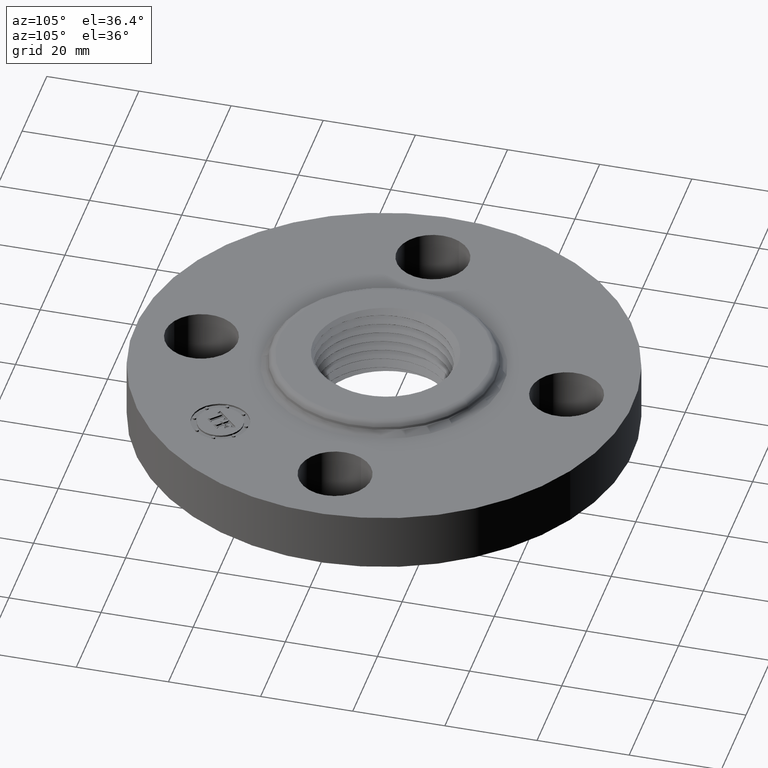
[diagram: clean part render]
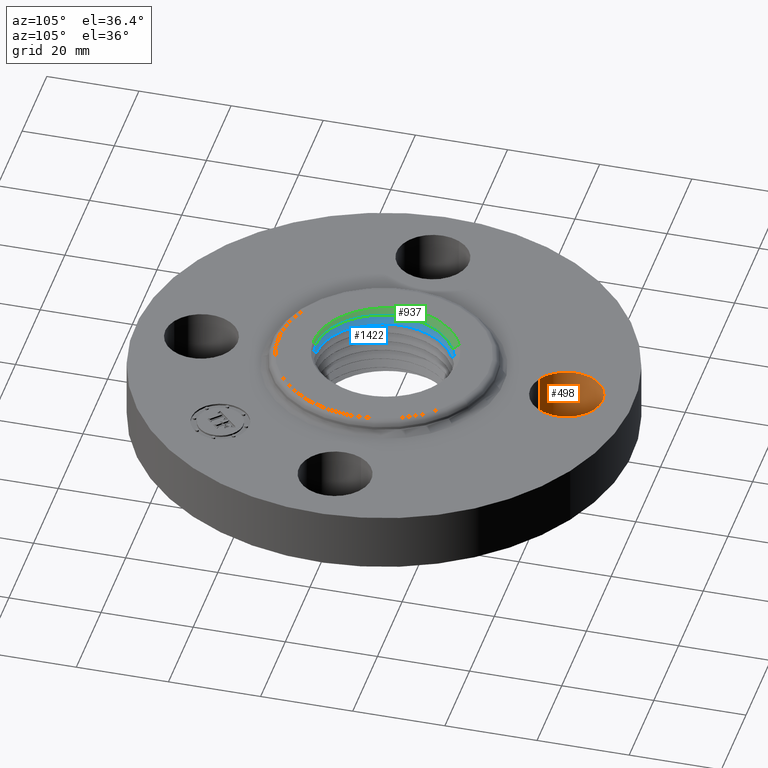
[diagram: same view with three faces highlighted in distinct colors, each labeled with its STEP entity id]
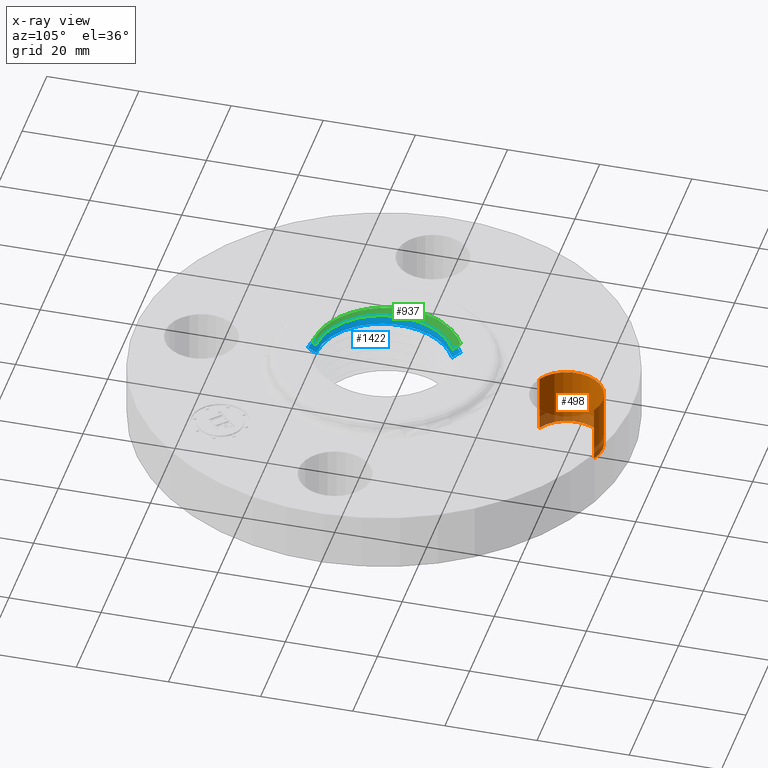
[diagram: x-ray of the same camera — body ghosted, the three highlighted faces saturated]
A machine part, auxiliary view with three faces highlighted in distinct colors.
The next image is the same camera in x-ray (body ghosted, the three faces saturated) — at least one of them is partly hidden behind the body in this view.
Their STEP definitions:

[orange] entity #498 — the highlighted cylindrical surface (partial cylindrical patch) has radius 7.874 mm, axis along (0, 0, -1).
#223=AXIS2_PLACEMENT_3D('Circle Axis2P3D',#221,#222,$) ;
#459=AXIS2_PLACEMENT_3D('Cylinder Axis2P3D',#456,#457,#458) ;
#489=AXIS2_PLACEMENT_3D('Circle Axis2P3D',#487,#488,$) ;
#221=CARTESIAN_POINT('Axis2P3D Location',(-4.54579506146E-016,1.56000000001,0.)) ;
#225=CARTESIAN_POINT('Vertex',(-0.148621916968,1.28794940582,0.)) ;
#227=CARTESIAN_POINT('Vertex',(0.148621916968,1.83205059419,0.)) ;
#456=CARTESIAN_POINT('Axis2P3D Location',(-2.86567351002E-016,1.56000000001,0.496062992128)) ;
#461=CARTESIAN_POINT('Line Origine',(0.148621916968,1.83205059419,0.250000000001)) ;
#465=CARTESIAN_POINT('Vertex',(0.148621916968,1.83205059419,0.500000000002)) ;
#468=CARTESIAN_POINT('Line Origine',(-0.148621916968,1.28794940582,0.250000000001)) ;
#472=CARTESIAN_POINT('Vertex',(-0.148621916968,1.28794940582,0.500000000002)) ;
#487=CARTESIAN_POINT('Axis2P3D Location',(-2.86567351002E-016,1.56000000001,0.500000000002)) ;
#222=DIRECTION('Axis2P3D Direction',(0.,0.,-0.0393700787402)) ;
#457=DIRECTION('Axis2P3D Direction',(0.,0.,-0.0393700787402)) ;
#458=DIRECTION('Axis2P3D XDirection',(-0.0188750212049,-0.0345504945626,-0.)) ;
#462=DIRECTION('Vector Direction',(0.,0.,-0.0393700787402)) ;
#469=DIRECTION('Vector Direction',(0.,0.,-0.0393700787402)) ;
#488=DIRECTION('Axis2P3D Direction',(0.,0.,-0.0393700787402)) ;
#463=VECTOR('Line Direction',#462,0.0393700787402) ;
#470=VECTOR('Line Direction',#469,0.0393700787402) ;
#493=ORIENTED_EDGE('',*,*,#474,.F.) ;
#494=ORIENTED_EDGE('',*,*,#229,.T.) ;
#495=ORIENTED_EDGE('',*,*,#467,.T.) ;
#496=ORIENTED_EDGE('',*,*,#491,.F.) ;
#498=ADVANCED_FACE('PartBody',(#497),#460,.F.) ;
#224=CIRCLE('generated circle',#223,0.310000000001) ;
#490=CIRCLE('generated circle',#489,0.310000000001) ;
#460=CYLINDRICAL_SURFACE('generated cylinder',#459,0.310000000001) ;
#229=EDGE_CURVE('',#226,#228,#224,.T.) ;
#467=EDGE_CURVE('',#228,#466,#464,.F.) ;
#474=EDGE_CURVE('',#226,#473,#471,.F.) ;
#491=EDGE_CURVE('',#473,#466,#490,.T.) ;
#492=EDGE_LOOP('',(#493,#494,#495,#496)) ;
#497=FACE_OUTER_BOUND('',#492,.T.) ;
#464=LINE('Line',#461,#463) ;
#471=LINE('Line',#468,#470) ;
#226=VERTEX_POINT('',#225) ;
#228=VERTEX_POINT('',#227) ;
#466=VERTEX_POINT('',#465) ;
#473=VERTEX_POINT('',#472) ;

[blue] entity #1422 — the highlighted face is a freeform B-spline surface patch.
#1022=CARTESIAN_POINT('Control Point',(5.42400886829E-006,-0.580404918174,0.517879665103)) ;
#1023=CARTESIAN_POINT('Control Point',(-1.00915924926E-006,-0.650004918968,0.55841301568)) ;
#1024=CARTESIAN_POINT('Vertex',(-1.00915924925E-006,-0.650004918968,0.55841301568)) ;
#1026=CARTESIAN_POINT('Vertex',(5.42400886833E-006,-0.580404918174,0.517879665103)) ;
#1226=CARTESIAN_POINT('Vertex',(-0.277719276771,0.508346686361,0.48130290538)) ;
#1230=CARTESIAN_POINT('Control Point',(5.4240088676E-006,-0.580404918174,0.517879665103)) ;
#1231=CARTESIAN_POINT('Control Point',(-0.0304725391835,-0.580382481226,0.517152564115)) ;
#1232=CARTESIAN_POINT('Control Point',(-0.0609482515686,-0.578359487307,0.516425446119)) ;
#1233=CARTESIAN_POINT('Control Point',(-0.0914662736757,-0.574327174004,0.515693045647)) ;
#1234=CARTESIAN_POINT('Control Point',(-0.151988174687,-0.562149435437,0.514223061727)) ;
#1235=CARTESIAN_POINT('Control Point',(-0.210356858931,-0.542088762067,0.512753370029)) ;
#1236=CARTESIAN_POINT('Control Point',(-0.23871725987,-0.530157411686,0.512021261778)) ;
#1237=CARTESIAN_POINT('Control Point',(-0.320932442633,-0.489088662272,0.50983303852)) ;
#1238=CARTESIAN_POINT('Control Point',(-0.393991759628,-0.432387279758,0.507644855539)) ;
#1239=CARTESIAN_POINT('Control Point',(-0.437482141275,-0.388259875827,0.506182723222)) ;
#1240=CARTESIAN_POINT('Control Point',(-0.511820310327,-0.289533809342,0.503257635908)) ;
#1241=CARTESIAN_POINT('Control Point',(-0.557995522914,-0.174861572779,0.500331906096)) ;
#1242=CARTESIAN_POINT('Control Point',(-0.573335585797,-0.114752133791,0.498867866456)) ;
#1243=CARTESIAN_POINT('Control Point',(-0.587759291114,0.00804259882664,0.495939749582)) ;
#1244=CARTESIAN_POINT('Control Point',(-0.569807163817,0.130310886627,0.49301331796)) ;
#1245=CARTESIAN_POINT('Control Point',(-0.552764874801,0.189885407999,0.491550843863)) ;
#1246=CARTESIAN_POINT('Control Point',(-0.51575322489,0.274712256644,0.489358630248)) ;
#1247=CARTESIAN_POINT('Control Point',(-0.463188433178,0.350163167667,0.487165784325)) ;
#1248=CARTESIAN_POINT('Control Point',(-0.443997552274,0.37418844985,0.486433119296)) ;
#1249=CARTESIAN_POINT('Control Point',(-0.402423272853,0.419640286767,0.484964386985)) ;
#1250=CARTESIAN_POINT('Control Point',(-0.35520503416,0.45921059265,0.4834953712)) ;
#1251=CARTESIAN_POINT('Control Point',(-0.330362803462,0.47734665217,0.482762422697)) ;
#1252=CARTESIAN_POINT('Control Point',(-0.304522178853,0.493729747457,0.482032672867)) ;
#1253=CARTESIAN_POINT('Control Point',(-0.277719276771,0.508346686361,0.48130290538)) ;
#1364=CARTESIAN_POINT('Vertex',(-0.311080079663,0.569430374936,0.521836255663)) ;
#1383=CARTESIAN_POINT('Control Point',(5.54645569605E-006,-0.579080174407,0.517108166498)) ;
#1384=CARTESIAN_POINT('Control Point',(-1.00915925067E-006,-0.650004918968,0.55841301568)) ;
#1385=CARTESIAN_POINT('Control Point',(-0.15292492011,-0.578967366439,0.513451417037)) ;
#1386=CARTESIAN_POINT('Control Point',(-0.171662340541,-0.649890379712,0.554756266183)) ;
#1387=CARTESIAN_POINT('Control Point',(-0.305815841934,-0.528369867479,0.509793811811)) ;
#1388=CARTESIAN_POINT('Control Point',(-0.343287893734,-0.593107739251,0.551098667222)) ;
#1389=CARTESIAN_POINT('Control Point',(-0.435845212812,-0.427326565956,0.506147704857)) ;
#1390=CARTESIAN_POINT('Control Point',(-0.489260493144,-0.479694683416,0.547452554306)) ;
#1391=CARTESIAN_POINT('Control Point',(-0.609395000238,-0.155967670912,0.49882911714)) ;
#1392=CARTESIAN_POINT('Control Point',(-0.684106409647,-0.175089498738,0.540133965826)) ;
#1393=CARTESIAN_POINT('Control Point',(-0.587105317123,0.165362330054,0.491507125974)) ;
#1394=CARTESIAN_POINT('Control Point',(-0.659111052572,0.185646457663,0.532811975297)) ;
#1395=CARTESIAN_POINT('Control Point',(-0.521367666287,0.316360759427,0.487857648391)) ;
#1396=CARTESIAN_POINT('Control Point',(-0.58532376324,0.355172570096,0.52916250015)) ;
#1397=CARTESIAN_POINT('Control Point',(-0.411331521622,0.433972681071,0.484194955999)) ;
#1398=CARTESIAN_POINT('Control Point',(-0.461796813088,0.48722420827,0.525499804913)) ;
#1399=CARTESIAN_POINT('Control Point',(-0.277084298114,0.507184039328,0.480531406793)) ;
#1400=CARTESIAN_POINT('Control Point',(-0.311080079663,0.569430374936,0.521836255663)) ;
#1402=CARTESIAN_POINT('Control Point',(-0.277719276771,0.508346686361,0.48130290538)) ;
#1403=CARTESIAN_POINT('Control Point',(-0.311080079663,0.569430374936,0.521836255663)) ;
#1406=CARTESIAN_POINT('Control Point',(-1.00915925067E-006,-0.650004918968,0.55841301568)) ;
#1407=CARTESIAN_POINT('Control Point',(-0.171662340541,-0.649890379712,0.554756266183)) ;
#1408=CARTESIAN_POINT('Control Point',(-0.343287893734,-0.593107739251,0.551098667222)) ;
#1409=CARTESIAN_POINT('Control Point',(-0.489260493144,-0.479694683416,0.547452554306)) ;
#1410=CARTESIAN_POINT('Control Point',(-0.684106409647,-0.175089498738,0.540133965826)) ;
#1411=CARTESIAN_POINT('Control Point',(-0.659111052572,0.185646457663,0.532811975297)) ;
#1412=CARTESIAN_POINT('Control Point',(-0.58532376324,0.355172570096,0.52916250015)) ;
#1413=CARTESIAN_POINT('Control Point',(-0.461796813088,0.48722420827,0.525499804913)) ;
#1414=CARTESIAN_POINT('Control Point',(-0.311080079663,0.569430374936,0.521836255663)) ;
#1417=ORIENTED_EDGE('',*,*,#1404,.F.) ;
#1418=ORIENTED_EDGE('',*,*,#1415,.F.) ;
#1419=ORIENTED_EDGE('',*,*,#1028,.T.) ;
#1420=ORIENTED_EDGE('',*,*,#1254,.T.) ;
#1422=ADVANCED_FACE('PartBody',(#1421),#1382,.T.) ;
#1021=B_SPLINE_CURVE_WITH_KNOTS('',1,(#1022,#1023),.UNSPECIFIED.,.F.,.U.,(2,2),(-1.0034218189,1.04236057529),.UNSPECIFIED.) ;
#1229=B_SPLINE_CURVE_WITH_KNOTS('',5,(#1230,#1231,#1232,#1233,#1234,#1235,#1236,#1237,#1238,#1239,#1240,#1241,#1242,#1243,#1244,#1245,#1246,#1247,#1248,#1249,#1250,#1251,#1252,#1253),.UNSPECIFIED.,.F.,.U.,(6,3,3,3,3,3,3,6),(0.,5.76528518737,11.5305703747,23.1248090347,34.7261059309,46.3262663804,52.107252433,57.8882384855),.UNSPECIFIED.) ;
#1401=B_SPLINE_CURVE_WITH_KNOTS('',1,(#1402,#1403),.UNSPECIFIED.,.F.,.U.,(2,2),(-1.00342181949,1.04236057529),.UNSPECIFIED.) ;
#1405=B_SPLINE_CURVE_WITH_KNOTS('',5,(#1406,#1407,#1408,#1409,#1410,#1411,#1412,#1413,#1414),.UNSPECIFIED.,.F.,.U.,(6,3,6),(0.,20.6725756436,41.3452553399),.UNSPECIFIED.) ;
#1382=B_SPLINE_SURFACE_WITH_KNOTS('',5,1,((#1383,#1384),(#1385,#1386),(#1387,#1388),(#1389,#1390),(#1391,#1392),(#1393,#1394),(#1395,#1396),(#1397,#1398),(#1399,#1400)),.UNSPECIFIED.,.F.,.F.,.U.,(6,3,6),(2,2),(0.,20.6725756436,41.3452553399),(-1.04236057529,1.04236057529),.UNSPECIFIED.) ;
#1028=EDGE_CURVE('',#1025,#1027,#1021,.F.) ;
#1254=EDGE_CURVE('',#1027,#1227,#1229,.T.) ;
#1404=EDGE_CURVE('',#1365,#1227,#1401,.F.) ;
#1415=EDGE_CURVE('',#1025,#1365,#1405,.T.) ;
#1416=EDGE_LOOP('',(#1417,#1418,#1419,#1420)) ;
#1421=FACE_OUTER_BOUND('',#1416,.T.) ;
#1025=VERTEX_POINT('',#1024) ;
#1027=VERTEX_POINT('',#1026) ;
#1227=VERTEX_POINT('',#1226) ;
#1365=VERTEX_POINT('',#1364) ;

[green] entity #937 — the highlighted face is a freeform B-spline surface patch.
#292=CARTESIAN_POINT('Vertex',(3.78292468322E-007,-0.609086848221,0.620000000002)) ;
#296=CARTESIAN_POINT('Control Point',(-0.629250746431,0.170458407323,0.620000000002)) ;
#297=CARTESIAN_POINT('Control Point',(-0.643500581482,0.109256120128,0.620000000002)) ;
#298=CARTESIAN_POINT('Control Point',(-0.650343126818,0.0464583063125,0.620000000002)) ;
#299=CARTESIAN_POINT('Control Point',(-0.649517964492,-0.0167532091973,0.620000000002)) ;
#300=CARTESIAN_POINT('Control Point',(-0.63399780429,-0.13106076514,0.620000000002)) ;
#301=CARTESIAN_POINT('Control Point',(-0.593925763293,-0.238485586327,0.620000000002)) ;
#302=CARTESIAN_POINT('Control Point',(-0.570836134961,-0.285190863407,0.620000000002)) ;
#303=CARTESIAN_POINT('Control Point',(-0.510048152464,-0.381869333101,0.620000000002)) ;
#304=CARTESIAN_POINT('Control Point',(-0.429483966075,-0.462472875095,0.620000000002)) ;
#305=CARTESIAN_POINT('Control Point',(-0.380424995311,-0.500705879021,0.620000000002)) ;
#306=CARTESIAN_POINT('Control Point',(-0.278787503051,-0.561379838387,0.620000000002)) ;
#307=CARTESIAN_POINT('Control Point',(-0.166418708085,-0.59647318263,0.620000000002)) ;
#308=CARTESIAN_POINT('Control Point',(-0.111225870758,-0.607025675954,0.620000000002)) ;
#309=CARTESIAN_POINT('Control Point',(-0.0554293036511,-0.611211214942,0.620000000002)) ;
#310=CARTESIAN_POINT('Control Point',(3.78292467902E-007,-0.609086848221,0.620000000002)) ;
#311=CARTESIAN_POINT('Vertex',(-0.629250746431,0.170458407323,0.620000000002)) ;
#742=CARTESIAN_POINT('Vertex',(-0.31238351382,0.571816286357,0.608836255763)) ;
#746=CARTESIAN_POINT('Control Point',(-0.27901898769,0.510734631817,0.568302904897)) ;
#747=CARTESIAN_POINT('Control Point',(-0.31238351382,0.571816286357,0.608836255763)) ;
#748=CARTESIAN_POINT('Vertex',(-0.27901898769,0.510734631817,0.568302904897)) ;
#872=CARTESIAN_POINT('Control Point',(1.24329627148E-006,-0.581798908273,0.604108166162)) ;
#873=CARTESIAN_POINT('Control Point',(-1.00495603133E-006,-0.652723652848,0.645413015781)) ;
#874=CARTESIAN_POINT('Control Point',(-0.15364780881,-0.581684963435,0.600451402676)) ;
#875=CARTESIAN_POINT('Control Point',(-0.172380991859,-0.652609114263,0.641756252295)) ;
#876=CARTESIAN_POINT('Control Point',(-0.307257065167,-0.530848926777,0.596793791129)) ;
#877=CARTESIAN_POINT('Control Point',(-0.344725320035,-0.595589031027,0.63809864355)) ;
#878=CARTESIAN_POINT('Control Point',(-0.437896899303,-0.42932984003,0.593147668442)) ;
#879=CARTESIAN_POINT('Control Point',(-0.491309136023,-0.481701071084,0.634452518205)) ;
#880=CARTESIAN_POINT('Control Point',(-0.612260433862,-0.156694571607,0.585829075246)) ;
#881=CARTESIAN_POINT('Control Point',(-0.686970735483,-0.175820719069,0.627133924634)) ;
#882=CARTESIAN_POINT('Control Point',(-0.589863848514,0.16614541915,0.578507090508)) ;
#883=CARTESIAN_POINT('Control Point',(-0.661870757982,0.186425341458,0.619811940219)) ;
#884=CARTESIAN_POINT('Control Point',(-0.523816297749,0.317853003709,0.574857631023)) ;
#885=CARTESIAN_POINT('Control Point',(-0.587774664862,0.356661020364,0.616162473523)) ;
#886=CARTESIAN_POINT('Control Point',(-0.413262447826,0.436017093631,0.571194940929)) ;
#887=CARTESIAN_POINT('Control Point',(-0.46373091814,0.489265580775,0.612499790424)) ;
#888=CARTESIAN_POINT('Control Point',(-0.278383938148,0.509572023465,0.567531406276)) ;
#889=CARTESIAN_POINT('Control Point',(-0.31238351382,0.571816286357,0.608836255763)) ;
#891=CARTESIAN_POINT('Control Point',(1.20130305332E-006,-0.583123652065,0.60487966479)) ;
#892=CARTESIAN_POINT('Control Point',(3.78292468003E-007,-0.609086848221,0.620000000002)) ;
#893=CARTESIAN_POINT('Vertex',(1.20130305409E-006,-0.583123652065,0.60487966479)) ;
#897=CARTESIAN_POINT('Control Point',(1.20130305325E-006,-0.583123652065,0.60487966479)) ;
#898=CARTESIAN_POINT('Control Point',(-0.0306198105071,-0.583100993166,0.604152557067)) ;
#899=CARTESIAN_POINT('Control Point',(-0.0612385626285,-0.581068369034,0.603425432314)) ;
#900=CARTESIAN_POINT('Control Point',(-0.0918996297364,-0.577017118656,0.60269302611)) ;
#901=CARTESIAN_POINT('Control Point',(-0.15270501651,-0.564782119437,0.601223038985)) ;
#902=CARTESIAN_POINT('Control Point',(-0.211346965002,-0.544627087896,0.59975335262)) ;
#903=CARTESIAN_POINT('Control Point',(-0.239840203134,-0.532639601445,0.599021247275)) ;
#904=CARTESIAN_POINT('Control Point',(-0.322440761663,-0.491377825152,0.596833017283)) ;
#905=CARTESIAN_POINT('Control Point',(-0.395842400843,-0.434410083934,0.594644828013)) ;
#906=CARTESIAN_POINT('Control Point',(-0.439536449356,-0.390075508236,0.593182690374)) ;
#907=CARTESIAN_POINT('Control Point',(-0.514222529883,-0.290886108509,0.590257598397)) ;
#908=CARTESIAN_POINT('Control Point',(-0.560613574989,-0.175675658153,0.587331863657)) ;
#909=CARTESIAN_POINT('Control Point',(-0.576025175984,-0.115284161687,0.585867821886)) ;
#910=CARTESIAN_POINT('Control Point',(-0.590515636133,0.00808654123564,0.582939700249)) ;
#911=CARTESIAN_POINT('Control Point',(-0.572478465214,0.130927999604,0.58001327397)) ;
#912=CARTESIAN_POINT('Control Point',(-0.555355872537,0.19078170319,0.578550806817)) ;
#913=CARTESIAN_POINT('Control Point',(-0.51817022437,0.276005871679,0.57635860428)) ;
#914=CARTESIAN_POINT('Control Point',(-0.465358590791,0.351810193438,0.574165766003)) ;
#915=CARTESIAN_POINT('Control Point',(-0.446077724743,0.375948072601,0.5734331078)) ;
#916=CARTESIAN_POINT('Control Point',(-0.404308337252,0.421612950198,0.571964382427)) ;
#917=CARTESIAN_POINT('Control Point',(-0.356868336022,0.461368605644,0.570495365295)) ;
#918=CARTESIAN_POINT('Control Point',(-0.331909423553,0.479589487827,0.569762414897)) ;
#919=CARTESIAN_POINT('Control Point',(-0.305947597207,0.496049273029,0.569032668391)) ;
#920=CARTESIAN_POINT('Control Point',(-0.27901898769,0.510734631817,0.568302904897)) ;
#923=CARTESIAN_POINT('Control Point',(-0.629250746431,0.170458407323,0.620000000002)) ;
#924=CARTESIAN_POINT('Control Point',(-0.60171385867,0.271843099189,0.617768710661)) ;
#925=CARTESIAN_POINT('Control Point',(-0.553762329656,0.367652653571,0.61553783146)) ;
#926=CARTESIAN_POINT('Control Point',(-0.486893786197,0.452457447422,0.61330616181)) ;
#927=CARTESIAN_POINT('Control Point',(-0.404720111195,0.521452348511,0.61107136727)) ;
#928=CARTESIAN_POINT('Control Point',(-0.31238351382,0.571816286357,0.608836255763)) ;
#931=ORIENTED_EDGE('',*,*,#895,.T.) ;
#932=ORIENTED_EDGE('',*,*,#921,.T.) ;
#933=ORIENTED_EDGE('',*,*,#750,.F.) ;
#934=ORIENTED_EDGE('',*,*,#929,.F.) ;
#935=ORIENTED_EDGE('',*,*,#313,.T.) ;
#937=ADVANCED_FACE('PartBody',(#936),#871,.T.) ;
#295=B_SPLINE_CURVE_WITH_KNOTS('',5,(#296,#297,#298,#299,#300,#301,#302,#303,#304,#305,#306,#307,#308,#309,#310),.UNSPECIFIED.,.F.,.U.,(6,3,3,3,6),(0.,11.0065143995,20.1754294606,31.1821020871,41.2281693899),.UNSPECIFIED.) ;
#745=B_SPLINE_CURVE_WITH_KNOTS('',1,(#746,#747),.UNSPECIFIED.,.F.,.U.,(2,2),(-1.00342181837,1.04236057529),.UNSPECIFIED.) ;
#890=B_SPLINE_CURVE_WITH_KNOTS('',1,(#891,#892),.UNSPECIFIED.,.F.,.U.,(2,2),(-1.00342181818,-0.240274562767),.UNSPECIFIED.) ;
#896=B_SPLINE_CURVE_WITH_KNOTS('',5,(#897,#898,#899,#900,#901,#902,#903,#904,#905,#906,#907,#908,#909,#910,#911,#912,#913,#914,#915,#916,#917,#918,#919,#920),.UNSPECIFIED.,.F.,.U.,(6,3,3,3,3,3,3,6),(0.,5.7782558808,11.5565117616,23.1767815434,34.8040829324,46.4302402142,52.2241472883,58.0180543623),.UNSPECIFIED.) ;
#922=B_SPLINE_CURVE_WITH_KNOTS('',5,(#923,#924,#925,#926,#927,#928),.UNSPECIFIED.,.F.,.U.,(6,6),(28.8595343381,41.527456431),.UNSPECIFIED.) ;
#871=B_SPLINE_SURFACE_WITH_KNOTS('',5,1,((#872,#873),(#874,#875),(#876,#877),(#878,#879),(#880,#881),(#882,#883),(#884,#885),(#886,#887),(#888,#889)),.UNSPECIFIED.,.F.,.F.,.U.,(6,3,6),(2,2),(0.,20.7636728242,41.527456431),(-1.04236057529,1.04236057529),.UNSPECIFIED.) ;
#313=EDGE_CURVE('',#312,#293,#295,.T.) ;
#750=EDGE_CURVE('',#743,#749,#745,.F.) ;
#895=EDGE_CURVE('',#293,#894,#890,.F.) ;
#921=EDGE_CURVE('',#894,#749,#896,.T.) ;
#929=EDGE_CURVE('',#312,#743,#922,.T.) ;
#930=EDGE_LOOP('',(#931,#932,#933,#934,#935)) ;
#936=FACE_OUTER_BOUND('',#930,.T.) ;
#293=VERTEX_POINT('',#292) ;
#312=VERTEX_POINT('',#311) ;
#743=VERTEX_POINT('',#742) ;
#749=VERTEX_POINT('',#748) ;
#894=VERTEX_POINT('',#893) ;